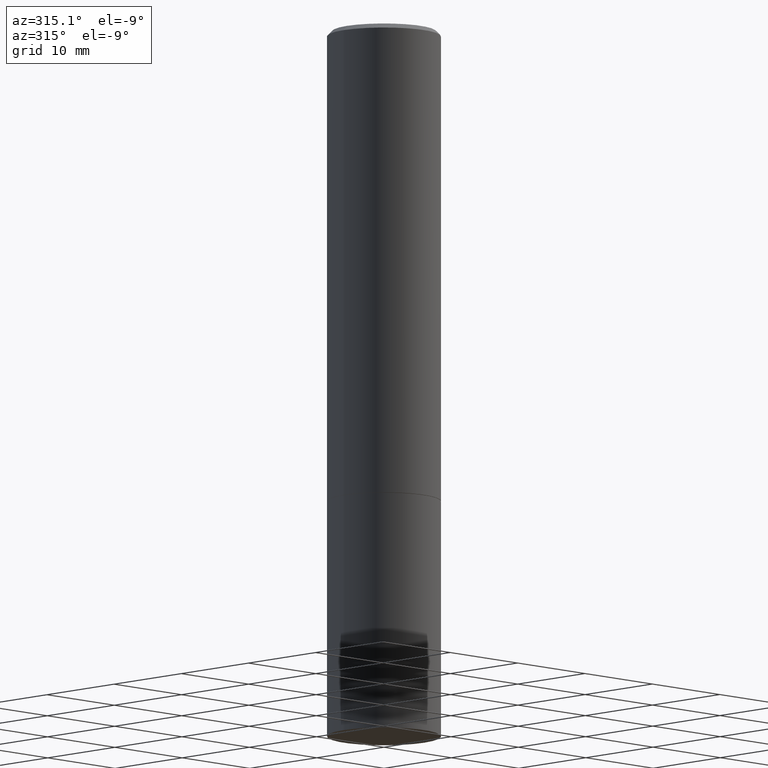
[diagram: clean part render]
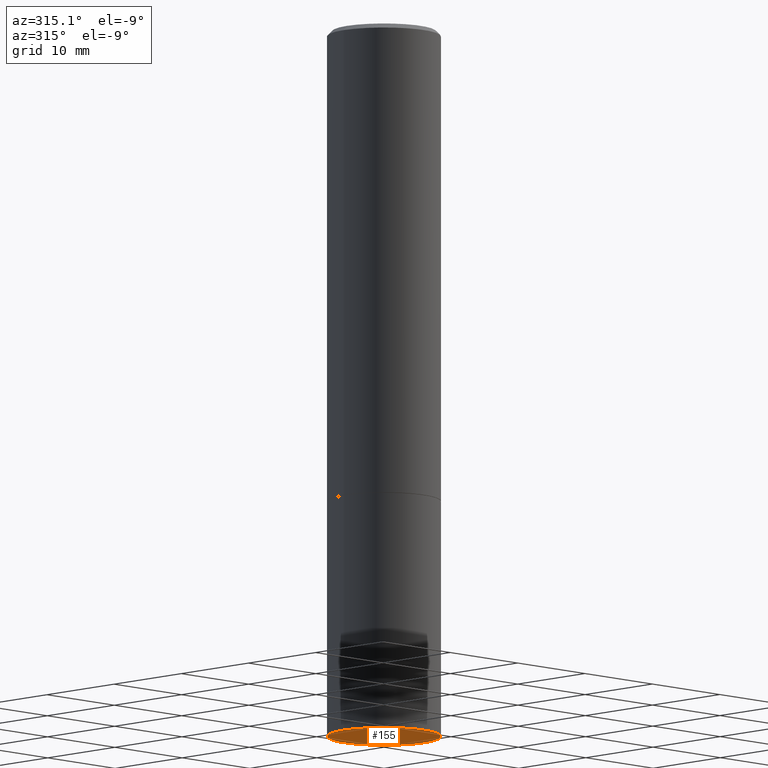
[diagram: same view with one face highlighted and labeled with its STEP entity id]
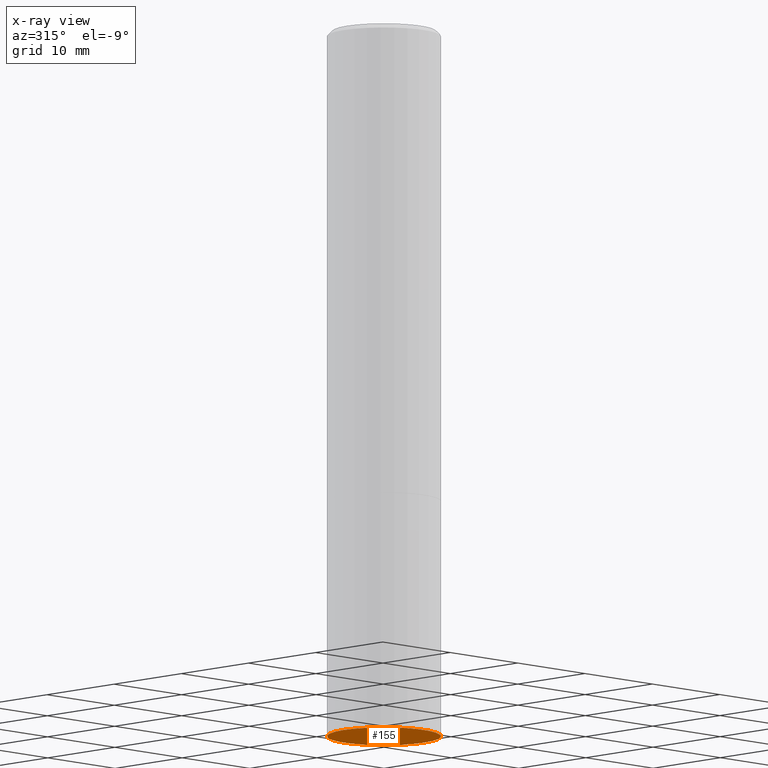
[diagram: x-ray of the same camera — body ghosted, the highlighted face saturated]
A machine part, auxiliary view. The second image highlights one B-rep face of the part: STEP entity #155.
The next image is the same camera in x-ray: the body ghosted, the highlighted face saturated — about 0% of this face is hidden behind the body in this view.
In plain terms, the highlighted planar face has unit normal (0, -0, -1).
Its self-contained STEP definition (entity closure, byte-faithful):
#39 = DIRECTION ( 'NONE',  ( 1.000000000000000000, -6.982962677686265133E-15, 0.000000000000000000 ) ) ;
#63 = ORIENTED_EDGE ( 'NONE', *, *, #351, .F. ) ;
#68 = CARTESIAN_POINT ( 'NONE',  ( 7.220980290903470182E-29, -1.030964609733603853E-14, -2.952799999999999869 ) ) ;
#88 = VERTEX_POINT ( 'NONE', #156 ) ;
#112 = CIRCLE ( 'NONE', #123, 0.2361999999999999933 ) ;
#123 = AXIS2_PLACEMENT_3D ( 'NONE', #68, #187, #39 ) ;
#130 = CARTESIAN_POINT ( 'NONE',  ( 1.649375784469568312E-15, 0.2361999999999896960, -2.952800000000000757 ) ) ;
#146 = CIRCLE ( 'NONE', #244, 0.2361999999999999933 ) ;
#147 = EDGE_CURVE ( 'NONE', #181, #88, #112, .T. ) ;
#149 = EDGE_LOOP ( 'NONE', ( #63, #176 ) ) ;
#155 = ADVANCED_FACE ( 'NONE', ( #192 ), #328, .T. ) ;
#156 = CARTESIAN_POINT ( 'NONE',  ( 0.2361999999999999933, -1.195902188180553348E-14, -2.952799999999999869 ) ) ;
#176 = ORIENTED_EDGE ( 'NONE', *, *, #147, .F. ) ;
#180 = DIRECTION ( 'NONE',  ( -2.445468806185136597E-29, 3.491481338843145583E-15, 1.000000000000000000 ) ) ;
#181 = VERTEX_POINT ( 'NONE', #285 ) ;
#182 = DIRECTION ( 'NONE',  ( 1.000000000000000000, -6.982962677686265133E-15, 0.000000000000000000 ) ) ;
#187 = DIRECTION ( 'NONE',  ( -2.445468806185136597E-29, 3.491481338843145583E-15, 1.000000000000000000 ) ) ;
#192 = FACE_OUTER_BOUND ( 'NONE', #149, .T. ) ;
#241 = DIRECTION ( 'NONE',  ( 2.438088387897960049E-29, -3.491481338843145188E-15, -1.000000000000000000 ) ) ;
#244 = AXIS2_PLACEMENT_3D ( 'NONE', #355, #180, #182 ) ;
#285 = CARTESIAN_POINT ( 'NONE',  ( -0.2361999999999999933, -6.913011614559027935E-15, -2.952799999999999869 ) ) ;
#328 = PLANE ( 'NONE',  #352 ) ;
#351 = EDGE_CURVE ( 'NONE', #88, #181, #146, .T. ) ;
#352 = AXIS2_PLACEMENT_3D ( 'NONE', #130, #241, #359 ) ;
#355 = CARTESIAN_POINT ( 'NONE',  ( 7.220980290903470182E-29, -1.030964609733603853E-14, -2.952799999999999869 ) ) ;
#359 = DIRECTION ( 'NONE',  ( -1.000000000000000000, 6.982962677686265922E-15, -4.876176775795935793E-29 ) ) ;